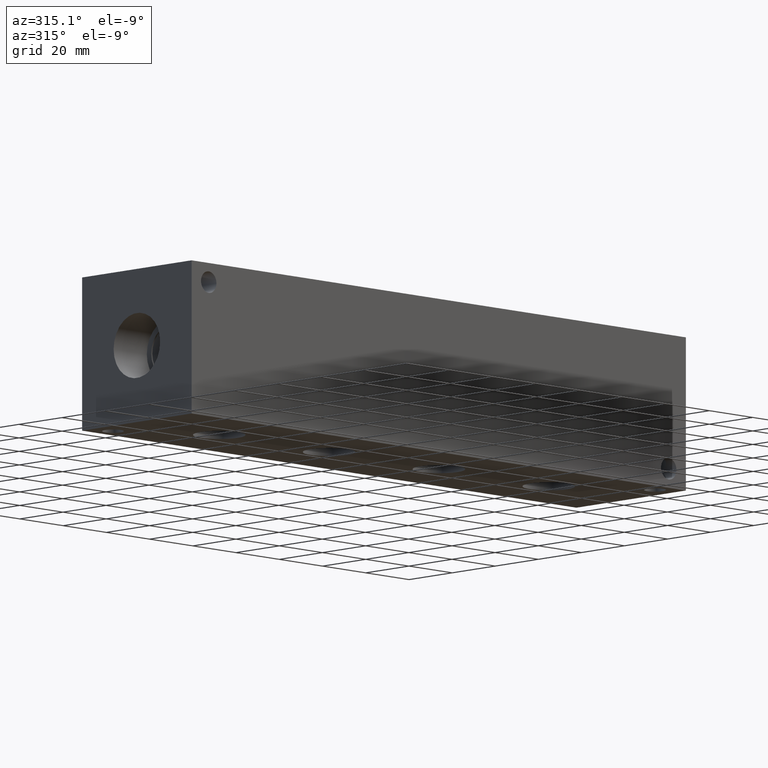
[diagram: clean part render]
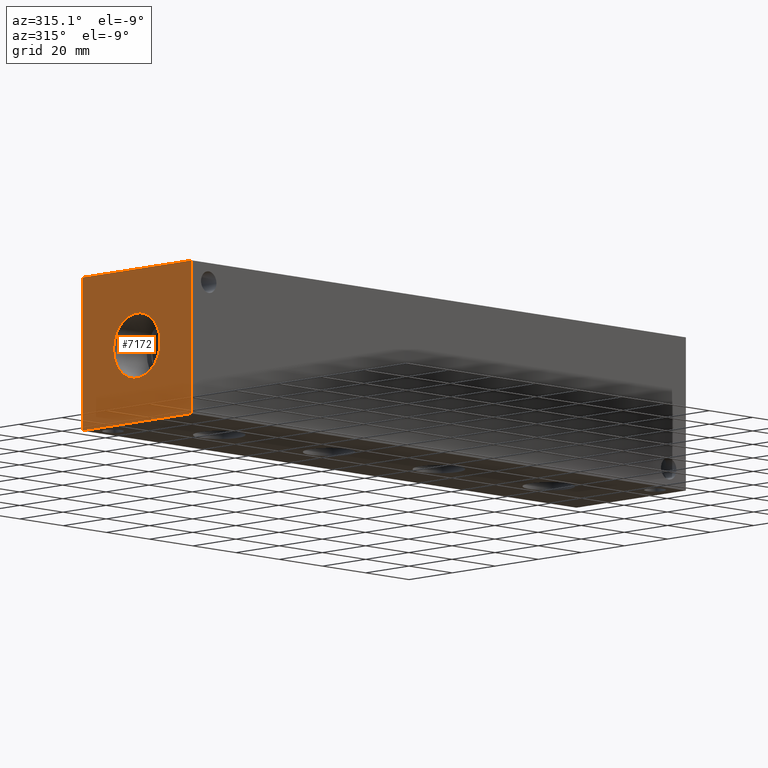
[diagram: same view with one face highlighted and labeled with its STEP entity id]
A machine part, auxiliary view. The second image highlights one B-rep face of the part: STEP entity #7172.
In plain terms, the highlighted planar face has unit normal (-1, 0, 0).
Its self-contained STEP definition (entity closure, byte-faithful):
#140=CIRCLE('',#7546,10.795);
#141=CIRCLE('',#7547,10.795);
#188=FACE_BOUND('',#1204,.T.);
#429=PLANE('',#7549);
#793=FACE_OUTER_BOUND('',#1203,.T.);
#1203=EDGE_LOOP('',(#6380,#6381,#6382,#6383));
#1204=EDGE_LOOP('',(#6384,#6385));
#1505=LINE('',#10983,#2213);
#1921=LINE('',#12168,#2629);
#1922=LINE('',#12169,#2630);
#1923=LINE('',#12170,#2631);
#2213=VECTOR('',#7995,10.);
#2629=VECTOR('',#8973,10.);
#2630=VECTOR('',#8974,10.);
#2631=VECTOR('',#8975,10.);
#3117=VERTEX_POINT('',#10976);
#3120=VERTEX_POINT('',#10981);
#3477=VERTEX_POINT('',#12158);
#3478=VERTEX_POINT('',#12159);
#3479=VERTEX_POINT('',#12166);
#3480=VERTEX_POINT('',#12167);
#3933=EDGE_CURVE('',#3120,#3117,#1505,.T.);
#4451=EDGE_CURVE('',#3477,#3478,#140,.T.);
#4452=EDGE_CURVE('',#3478,#3477,#141,.T.);
#4455=EDGE_CURVE('',#3479,#3480,#1921,.T.);
#4456=EDGE_CURVE('',#3480,#3117,#1922,.T.);
#4457=EDGE_CURVE('',#3479,#3120,#1923,.T.);
#6380=ORIENTED_EDGE('',*,*,#4455,.T.);
#6381=ORIENTED_EDGE('',*,*,#4456,.T.);
#6382=ORIENTED_EDGE('',*,*,#3933,.F.);
#6383=ORIENTED_EDGE('',*,*,#4457,.F.);
#6384=ORIENTED_EDGE('',*,*,#4451,.T.);
#6385=ORIENTED_EDGE('',*,*,#4452,.T.);
#7172=ADVANCED_FACE('',(#793,#188),#429,.T.);
#7546=AXIS2_PLACEMENT_3D('',#12160,#8963,#8964);
#7547=AXIS2_PLACEMENT_3D('',#12161,#8965,#8966);
#7549=AXIS2_PLACEMENT_3D('',#12165,#8971,#8972);
#7995=DIRECTION('',(0.,-1.,0.));
#8963=DIRECTION('center_axis',(1.,0.,0.));
#8964=DIRECTION('ref_axis',(0.,1.,0.));
#8965=DIRECTION('center_axis',(1.,0.,0.));
#8966=DIRECTION('ref_axis',(0.,1.,0.));
#8971=DIRECTION('center_axis',(-1.,0.,0.));
#8972=DIRECTION('ref_axis',(0.,-1.,0.));
#8973=DIRECTION('',(0.,-1.,0.));
#8974=DIRECTION('',(0.,0.,1.));
#8975=DIRECTION('',(0.,0.,1.));
#10976=CARTESIAN_POINT('',(0.,0.,50.8));
#10981=CARTESIAN_POINT('',(0.,50.8,50.8));
#10983=CARTESIAN_POINT('',(0.,50.8,50.8));
#12158=CARTESIAN_POINT('',(0.,36.195,25.4));
#12159=CARTESIAN_POINT('',(0.,14.605,25.4));
#12160=CARTESIAN_POINT('Origin',(0.,25.4,25.4));
#12161=CARTESIAN_POINT('Origin',(0.,25.4,25.4));
#12165=CARTESIAN_POINT('Origin',(0.,50.8,0.));
#12166=CARTESIAN_POINT('',(0.,50.8,0.));
#12167=CARTESIAN_POINT('',(0.,0.,0.));
#12168=CARTESIAN_POINT('',(0.,50.8,0.));
#12169=CARTESIAN_POINT('',(0.,0.,0.));
#12170=CARTESIAN_POINT('',(0.,50.8,0.));